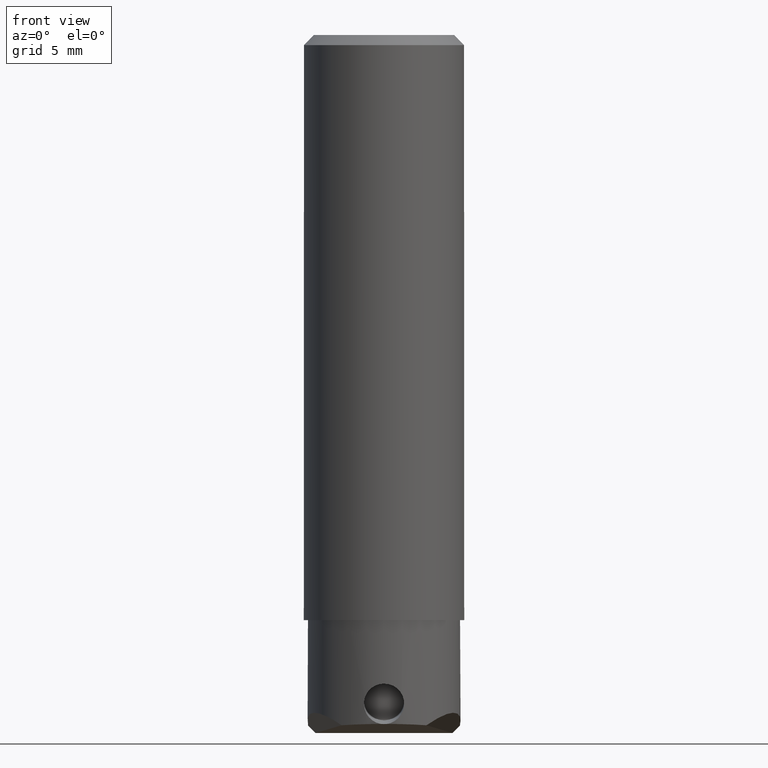
[diagram: clean part render]
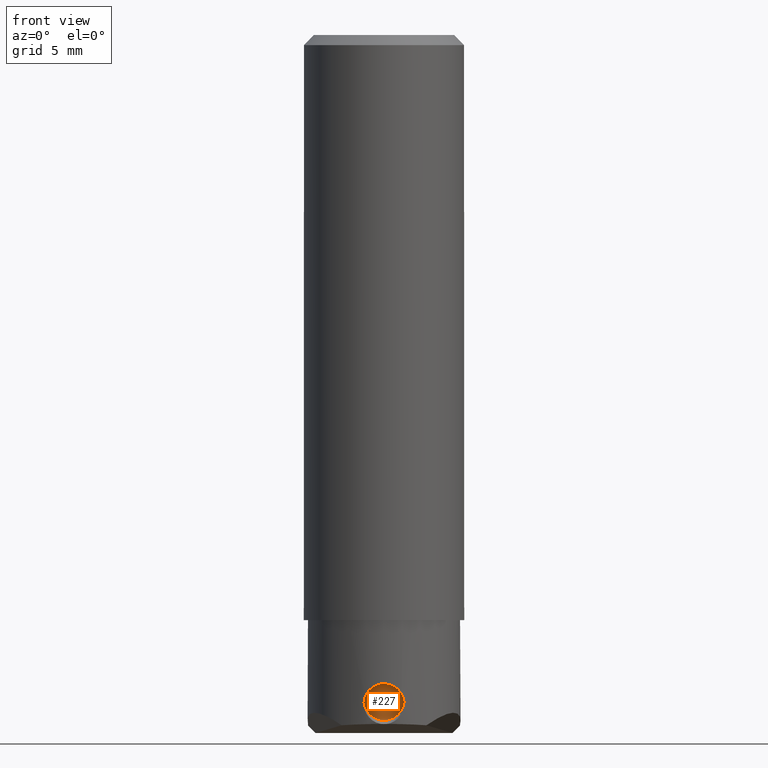
[diagram: same view with one face highlighted and labeled with its STEP entity id]
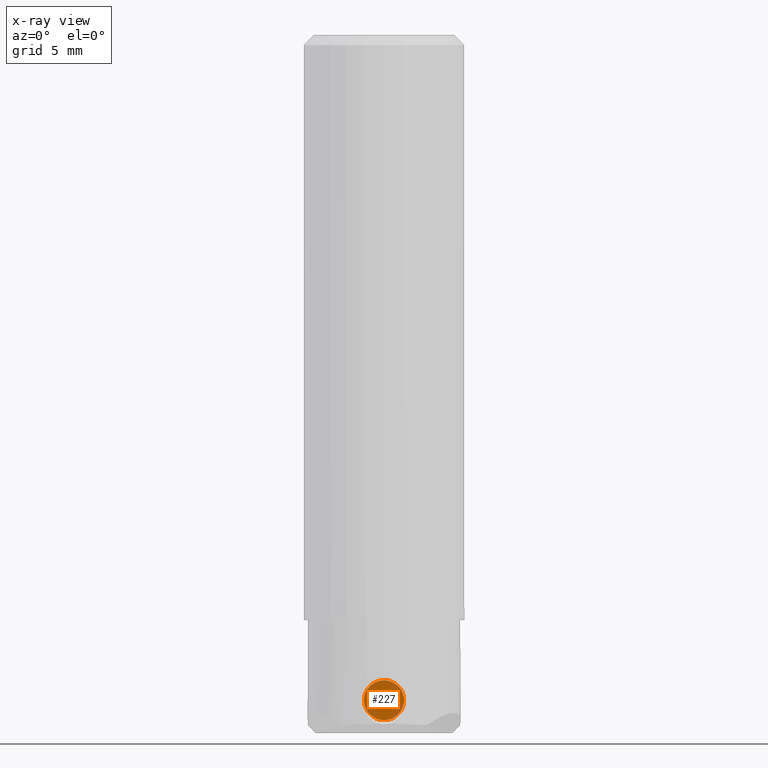
[diagram: x-ray of the same camera — body ghosted, the highlighted face saturated]
A machine part, front view. The second image highlights one B-rep face of the part: STEP entity #227.
The next image is the same camera in x-ray: the body ghosted, the highlighted face saturated — about 0% of this face is hidden behind the body in this view.
In plain terms, the highlighted planar face has unit normal (0, 0.9962, 0.0872).
Its self-contained STEP definition (entity closure, byte-faithful):
#137=FACE_OUTER_BOUND('',#319,.T.);
#227=ADVANCED_FACE('',(#137),#271,.F.);
#271=PLANE('',#1298);
#319=EDGE_LOOP('',(#688,#689));
#688=ORIENTED_EDGE('',*,*,#1035,.F.);
#689=ORIENTED_EDGE('',*,*,#1036,.F.);
#889=VERTEX_POINT('',#2041);
#890=VERTEX_POINT('',#2042);
#1035=EDGE_CURVE('',#889,#890,#1126,.T.);
#1036=EDGE_CURVE('',#890,#889,#1127,.T.);
#1126=CIRCLE('',#1296,0.9999999999935);
#1127=CIRCLE('',#1297,0.9999999999935);
#1296=AXIS2_PLACEMENT_3D('',#2040,#1583,#1584);
#1297=AXIS2_PLACEMENT_3D('',#2043,#1585,#1586);
#1298=AXIS2_PLACEMENT_3D('',#2044,#1587,#1588);
#1583=DIRECTION('',(0.,0.996194698091543,0.0871557427499738));
#1584=DIRECTION('',(0.,-0.0871557427499738,0.996194698091543));
#1585=DIRECTION('',(0.,0.996194698091543,0.0871557427499738));
#1586=DIRECTION('',(0.,0.0871557427499738,-0.996194698091543));
#1587=DIRECTION('',(0.,0.996194698091748,0.0871557427476342));
#1588=DIRECTION('',(0.,0.0871557427476342,-0.996194698091748));
#2040=CARTESIAN_POINT('',(0.,-1.708238313719,-33.02282626427));
#2041=CARTESIAN_POINT('',(0.,-1.795394056466,-32.02663156619));
#2042=CARTESIAN_POINT('',(0.,-1.621082570969,-34.01902096236));
#2043=CARTESIAN_POINT('',(0.,-1.708238313719,-33.02282626427));
#2044=CARTESIAN_POINT('',(0.,-1.708238313717,-33.02282626428));